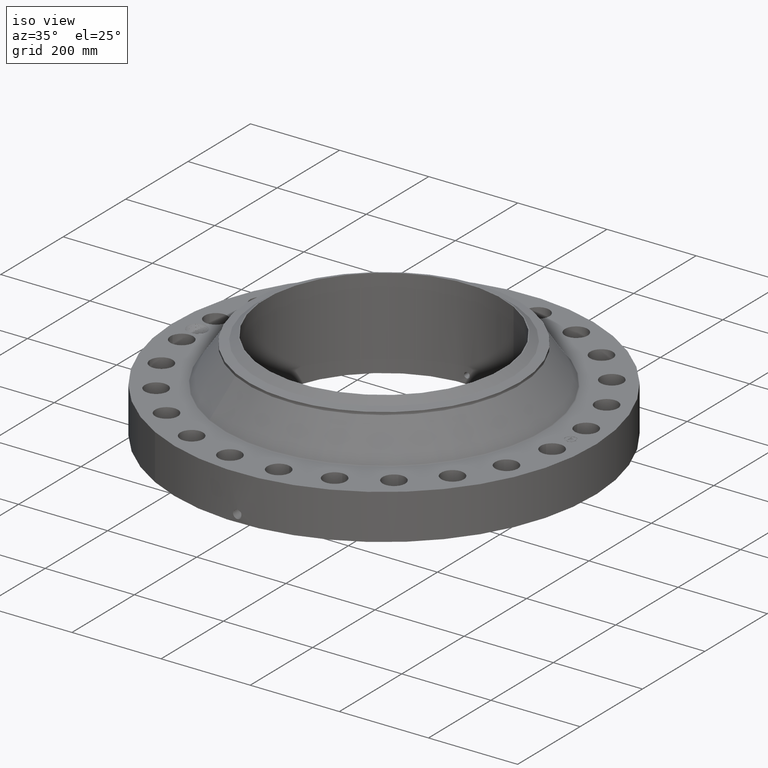
[diagram: clean part render]
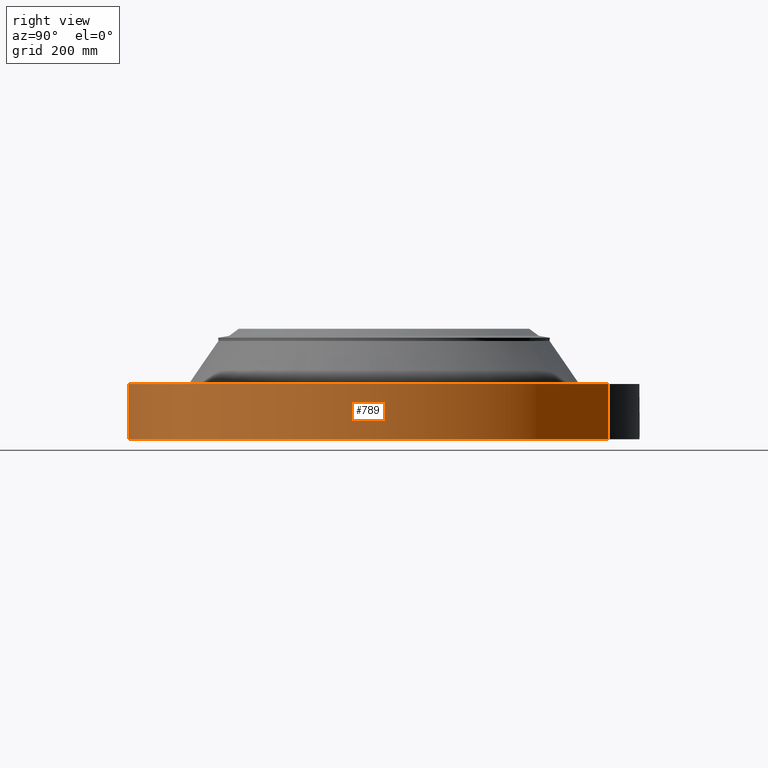
[diagram: tour spotlight — one face highlighted and labeled with its STEP entity id]
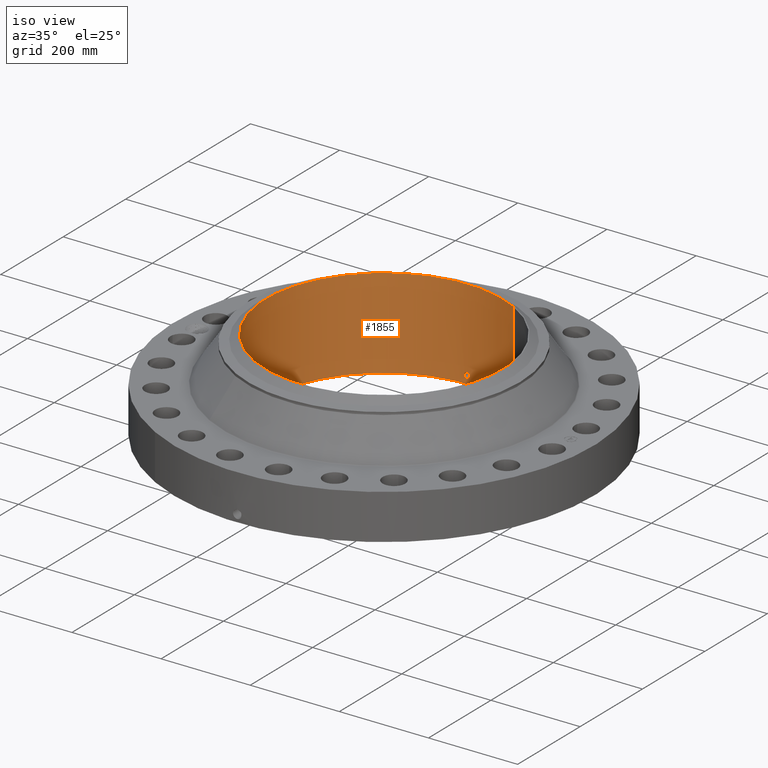
[diagram: tour spotlight — one face highlighted and labeled with its STEP entity id]
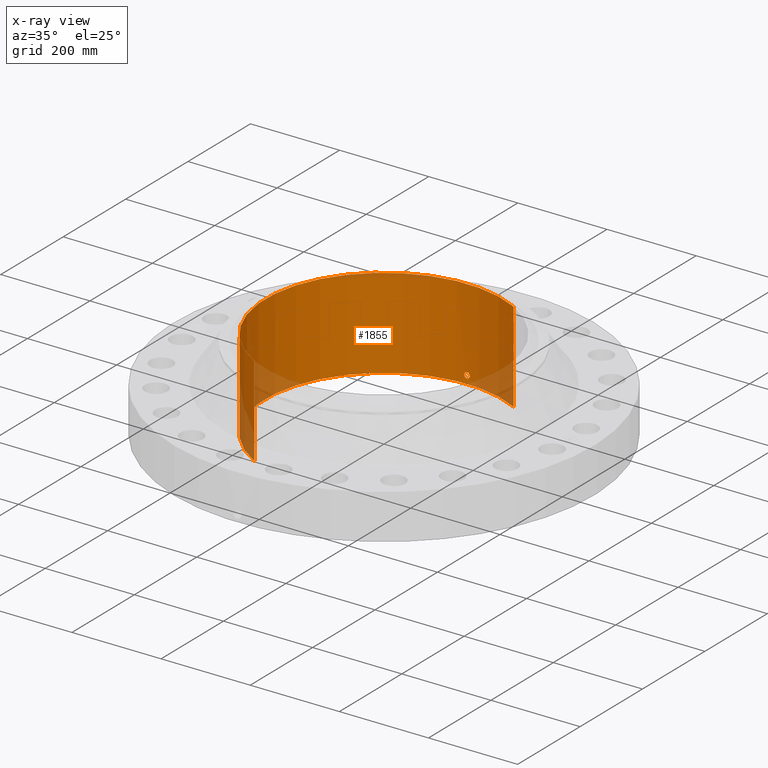
[diagram: x-ray of the same camera — body ghosted, this tour face saturated]
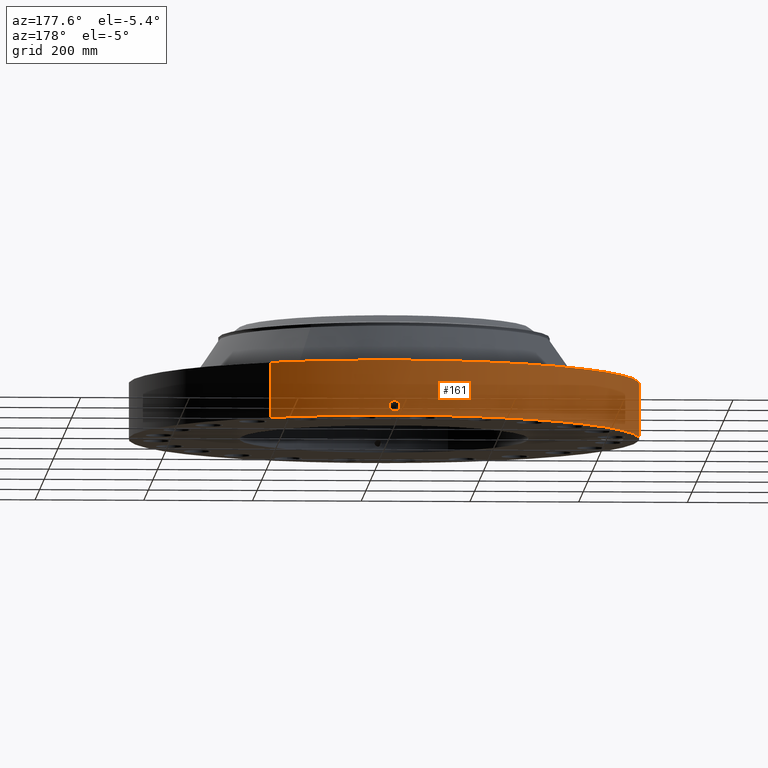
[diagram: tour spotlight — one face highlighted and labeled with its STEP entity id]
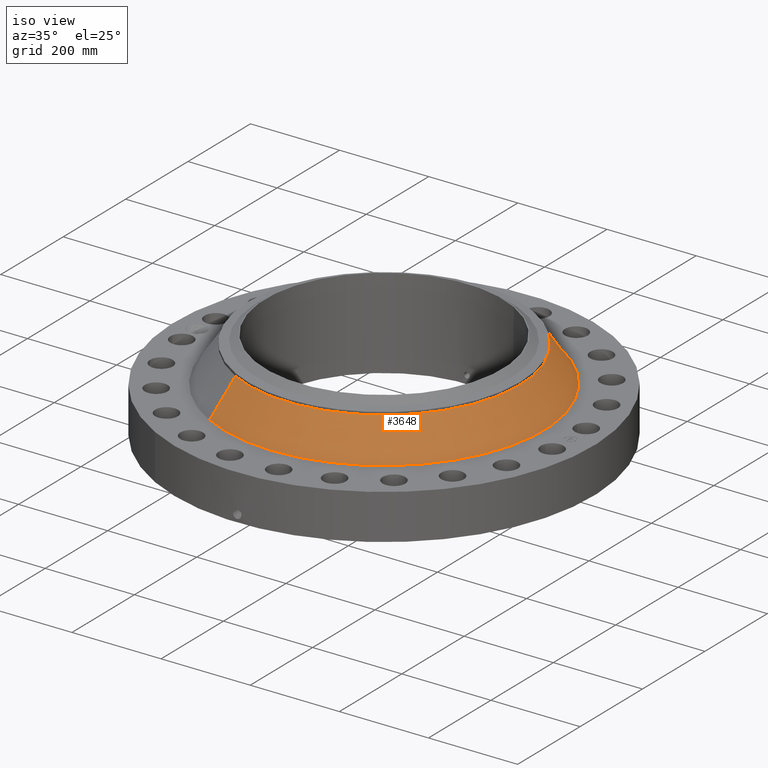
[diagram: tour spotlight — one face highlighted and labeled with its STEP entity id]
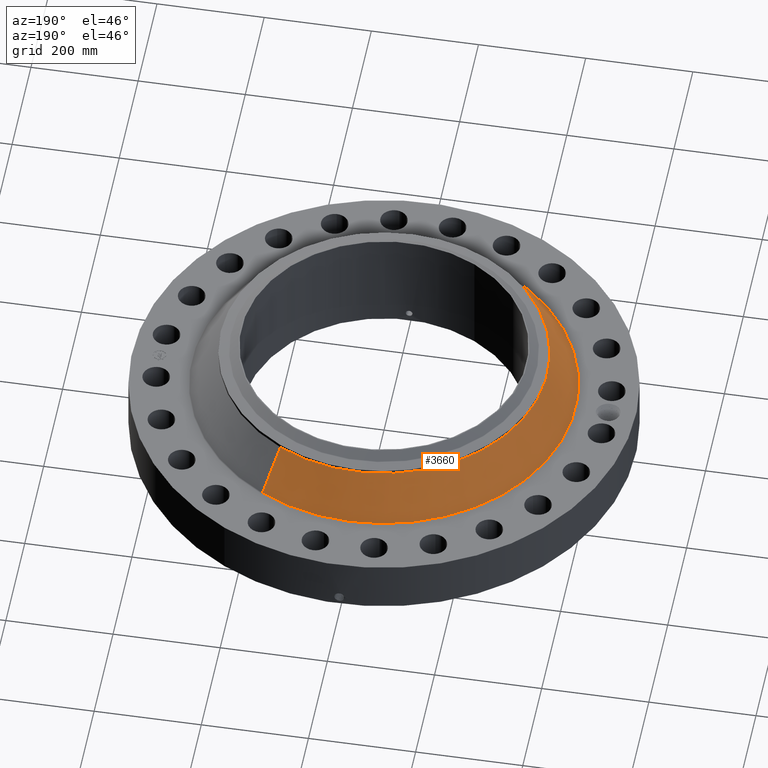
[diagram: tour spotlight — one face highlighted and labeled with its STEP entity id]
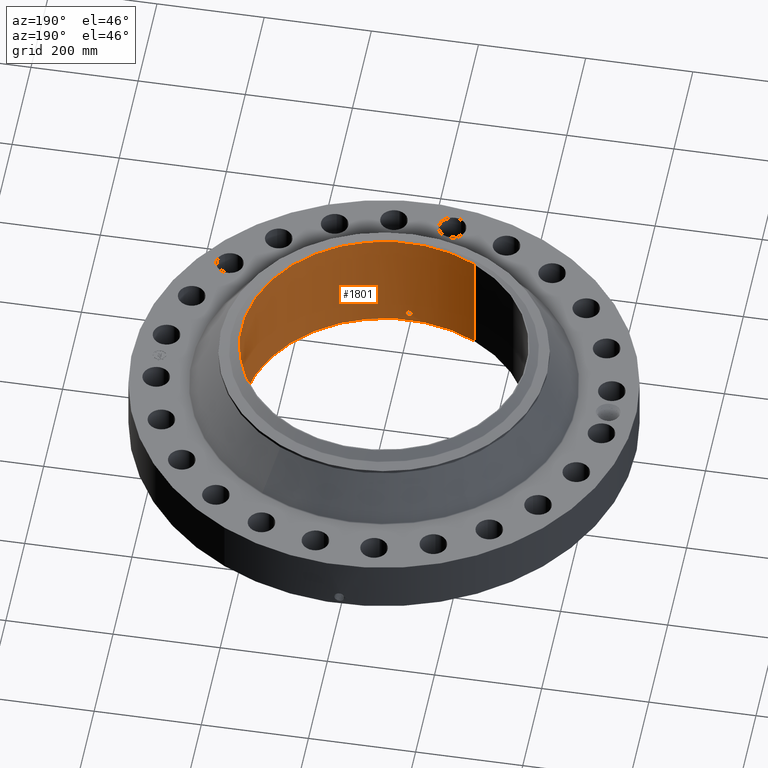
[diagram: tour spotlight — one face highlighted and labeled with its STEP entity id]
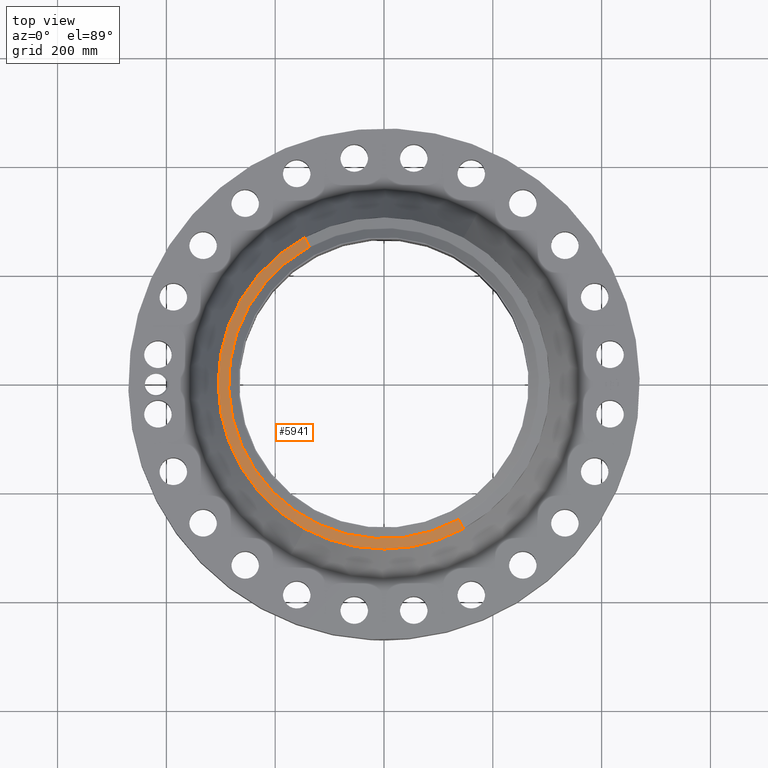
[diagram: tour spotlight — one face highlighted and labeled with its STEP entity id]
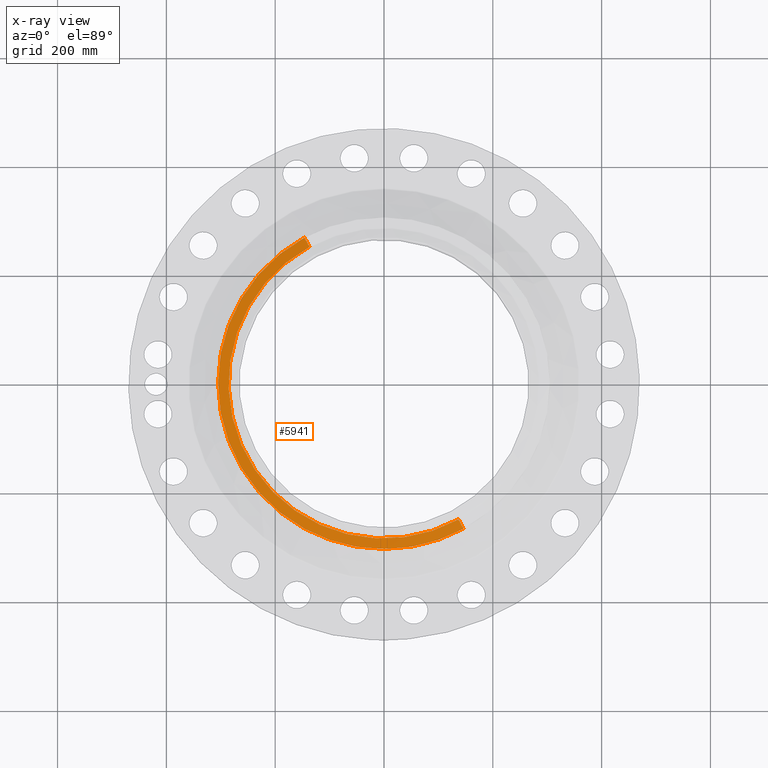
[diagram: x-ray of the same camera — body ghosted, this tour face saturated]
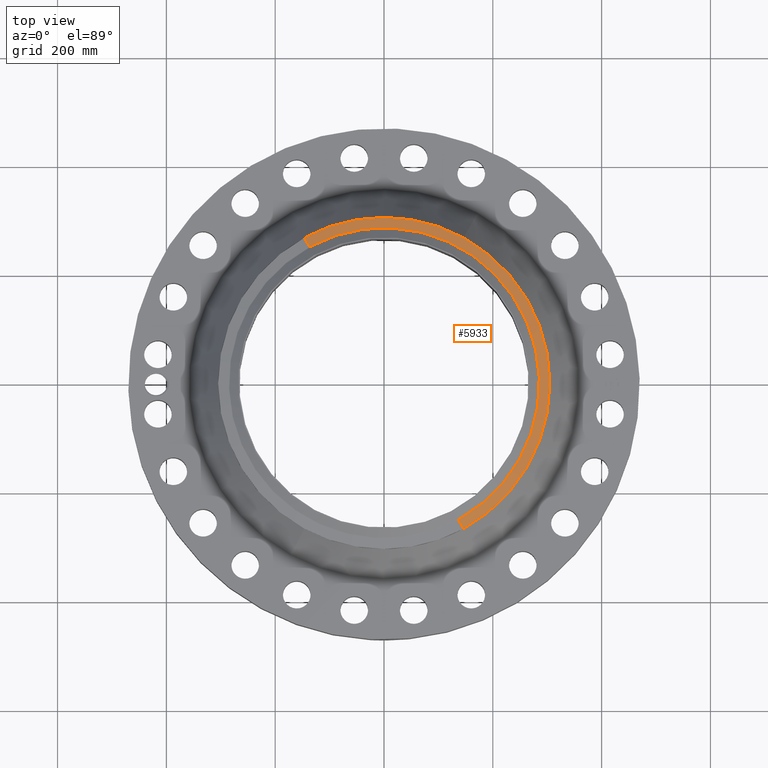
[diagram: tour spotlight — one face highlighted and labeled with its STEP entity id]
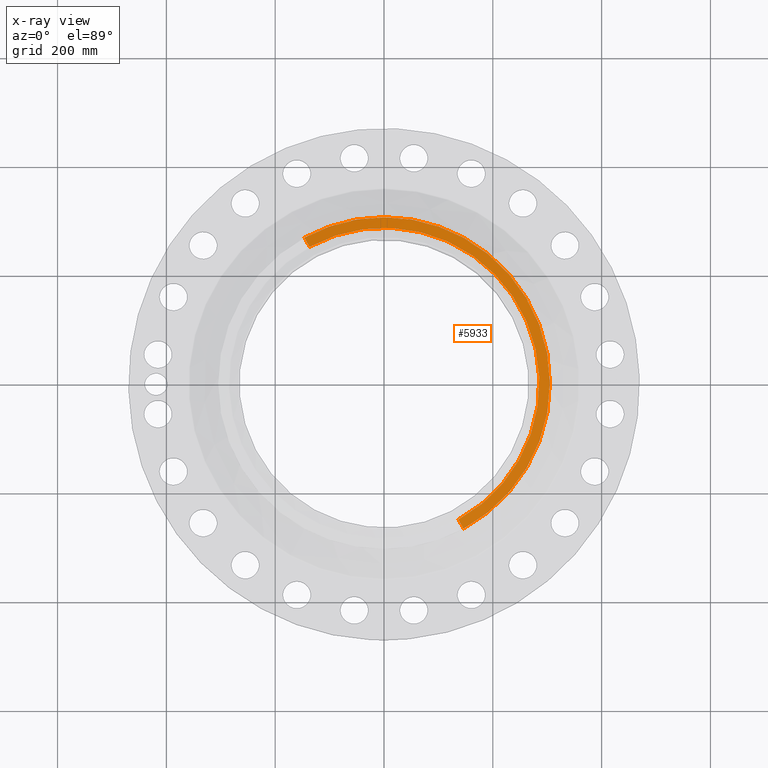
[diagram: x-ray of the same camera — body ghosted, this tour face saturated]
A machine part: a face-by-face anatomy tour. The part has 904 B-rep faces; the first image is the clean iso view, then the 8 largest visible faces are spotlighted one at a time (largest first), each with its STEP entity span.

Face 1 — right view, entity #789. In plain terms, the highlighted cylindrical surface (partial cylindrical patch) has radius 469.9 mm, axis along (0, 0, -1).
Definition (entity closure, byte-faithful):
#38=AXIS2_PLACEMENT_3D('Cylinder Axis2P3D',#35,#36,#37) ;
#169=AXIS2_PLACEMENT_3D('Circle Axis2P3D',#167,#168,$) ;
#693=AXIS2_PLACEMENT_3D('Circle Axis2P3D',#691,#692,$) ;
#35=CARTESIAN_POINT('Axis2P3D Location',(0.,0.,4.25000000002)) ;
#44=CARTESIAN_POINT('Vertex',(-8.86937246421,-16.235277395,0.250000000001)) ;
#46=CARTESIAN_POINT('Vertex',(8.86937246421,16.235277395,0.250000000001)) ;
#49=CARTESIAN_POINT('Line Origine',(-8.86937246421,-16.235277395,2.25000000001)) ;
#53=CARTESIAN_POINT('Vertex',(-8.86937246421,-16.235277395,4.25000000002)) ;
#60=CARTESIAN_POINT('Vertex',(8.86937246421,16.235277395,4.25000000002)) ;
#63=CARTESIAN_POINT('Line Origine',(8.86937246421,16.235277395,2.25000000001)) ;
#167=CARTESIAN_POINT('Axis2P3D Location',(0.,0.,0.250000000001)) ;
#691=CARTESIAN_POINT('Axis2P3D Location',(0.,0.,4.25000000002)) ;
#703=CARTESIAN_POINT('Control Point',(0.000715896612187,-18.4999999862,1.29411846169)) ;
#704=CARTESIAN_POINT('Control Point',(0.0187690338083,-18.4999992876,1.29408201303)) ;
#705=CARTESIAN_POINT('Control Point',(0.0368190531862,-18.4999719594,1.29266143021)) ;
#706=CARTESIAN_POINT('Control Point',(0.0546554423358,-18.4999192643,1.28987343585)) ;
#707=CARTESIAN_POINT('Vertex',(0.000715605657762,-18.4999999862,1.29411851083)) ;
#709=CARTESIAN_POINT('Vertex',(0.0546469351871,-18.4999195393,1.28987478304)) ;
#713=CARTESIAN_POINT('Control Point',(0.054646841952,-18.4999192897,1.28987424347)) ;
#714=CARTESIAN_POINT('Control Point',(0.0953263011124,-18.4997991268,1.2855492369)) ;
#715=CARTESIAN_POINT('Control Point',(0.135394458599,-18.4995414291,1.27383673999)) ;
#716=CARTESIAN_POINT('Control Point',(0.172335301089,-18.4991972947,1.25548810309)) ;
#717=CARTESIAN_POINT('Vertex',(0.172335301089,-18.4991972947,1.25548810309)) ;
#721=CARTESIAN_POINT('Control Point',(0.0312030034983,-18.4999736858,0.531203410469)) ;
#722=CARTESIAN_POINT('Control Point',(0.0718450460356,-18.4999051368,0.536341597851)) ;
#723=CARTESIAN_POINT('Control Point',(0.111695389267,-18.4997263163,0.546733387416)) ;
#724=CARTESIAN_POINT('Control Point',(0.14982224501,-18.4994472432,0.562224274306)) ;
#725=CARTESIAN_POINT('Control Point',(0.239726261616,-18.4985677678,0.613168772618)) ;
#726=CARTESIAN_POINT('Control Point',(0.308947751189,-18.49748029,0.690005188163)) ;
#727=CARTESIAN_POINT('Control Point',(0.34088171424,-18.4968776494,0.743751820245)) ;
#728=CARTESIAN_POINT('Control Point',(0.375548385646,-18.4961922673,0.841053911785)) ;
#729=CARTESIAN_POINT('Control Point',(0.377925518428,-18.49613818,0.942360608264)) ;
#730=CARTESIAN_POINT('Control Point',(0.373557802154,-18.4962295978,0.98289608881)) ;
#731=CARTESIAN_POINT('Control Point',(0.350960638929,-18.4966900038,1.07576397081)) ;
#732=CARTESIAN_POINT('Control Point',(0.301105416473,-18.4975866111,1.15736465344)) ;
#733=CARTESIAN_POINT('Control Point',(0.264116363887,-18.4981861301,1.19848304336)) ;
#734=CARTESIAN_POINT('Control Point',(0.220404953151,-18.4987494862,1.23161174714)) ;
#735=CARTESIAN_POINT('Control Point',(0.172335301089,-18.4991972947,1.25548810309)) ;
#736=CARTESIAN_POINT('Vertex',(0.0312030034982,-18.4999736858,0.531203410469)) ;
#740=CARTESIAN_POINT('Control Point',(0.0312030034983,-18.4999736858,0.531203410469)) ;
#741=CARTESIAN_POINT('Control Point',(0.0207974037432,-18.4999912364,0.530876622291)) ;
#742=CARTESIAN_POINT('Control Point',(0.0103835541371,-18.5000000016,0.530933889407)) ;
#743=CARTESIAN_POINT('Control Point',(-2.7287835428E-006,-18.5000000001,0.531374667806)) ;
#744=CARTESIAN_POINT('Vertex',(-2.72878354684E-006,-18.5000000001,0.531374667806)) ;
#748=CARTESIAN_POINT('Control Point',(-0.192470931564,-18.4989987552,0.587695660475)) ;
#749=CARTESIAN_POINT('Control Point',(-0.148945882499,-18.4994516071,0.562206680473)) ;
#750=CARTESIAN_POINT('Control Point',(-0.101106106884,-18.4998134468,0.543838011045)) ;
#751=CARTESIAN_POINT('Control Point',(-0.0508022021787,-18.4999999926,0.533530520618)) ;
#752=CARTESIAN_POINT('Control Point',(-2.7287835428E-006,-18.5000000001,0.531374667806)) ;
#753=CARTESIAN_POINT('Vertex',(-0.192470931564,-18.4989987552,0.587695660475)) ;
#757=CARTESIAN_POINT('Control Point',(-0.192470931564,-18.4989987552,0.587695660475)) ;
#758=CARTESIAN_POINT('Control Point',(-0.249191019794,-18.4984086168,0.620911867937)) ;
#759=CARTESIAN_POINT('Control Point',(-0.299060397388,-18.4976723445,0.665463330238)) ;
#760=CARTESIAN_POINT('Control Point',(-0.338923008855,-18.4969275001,0.719717175208)) ;
#761=CARTESIAN_POINT('Control Point',(-0.382764224126,-18.4960477714,0.818051173494)) ;
#762=CARTESIAN_POINT('Control Point',(-0.391048711258,-18.4958654701,0.923323111845)) ;
#763=CARTESIAN_POINT('Control Point',(-0.388831077384,-18.4959136413,0.963549344775)) ;
#764=CARTESIAN_POINT('Control Point',(-0.369138739474,-18.4963338364,1.06654327366)) ;
#765=CARTESIAN_POINT('Control Point',(-0.315552862232,-18.4973579272,1.15727532626)) ;
#766=CARTESIAN_POINT('Control Point',(-0.27100512944,-18.498119989,1.2048784257)) ;
#767=CARTESIAN_POINT('Control Point',(-0.190251087569,-18.4991637675,1.26077011297)) ;
#768=CARTESIAN_POINT('Control Point',(-0.0983770085627,-18.4997807413,1.28790815228)) ;
#769=CARTESIAN_POINT('Control Point',(-0.0656648821896,-18.4999278119,1.29368791324)) ;
#770=CARTESIAN_POINT('Control Point',(-0.0326810870128,-18.5000000458,1.2957565762)) ;
#771=CARTESIAN_POINT('Control Point',(2.58579355705E-005,-18.5000000001,1.29415298429)) ;
#772=CARTESIAN_POINT('Vertex',(2.58579355483E-005,-18.5000000001,1.29415298429)) ;
#776=CARTESIAN_POINT('Control Point',(0.00071560564832,-18.4999999862,1.29411851081)) ;
#777=CARTESIAN_POINT('Control Point',(0.000370756442934,-18.4999999996,1.29413607425)) ;
#778=CARTESIAN_POINT('Control Point',(2.58579404215E-005,-18.5000000001,1.29415298429)) ;
#36=DIRECTION('Axis2P3D Direction',(0.,0.,-0.0393700787402)) ;
#37=DIRECTION('Axis2P3D XDirection',(0.0188750212049,0.0345504945626,0.)) ;
#50=DIRECTION('Vector Direction',(0.,0.,-0.0393700787402)) ;
#64=DIRECTION('Vector Direction',(0.,0.,-0.0393700787402)) ;
#168=DIRECTION('Axis2P3D Direction',(0.,0.,-0.0393700787402)) ;
#692=DIRECTION('Axis2P3D Direction',(0.,0.,-0.0393700787402)) ;
#51=VECTOR('Line Direction',#50,0.0393700787402) ;
#65=VECTOR('Line Direction',#64,0.0393700787402) ;
#697=ORIENTED_EDGE('',*,*,#171,.F.) ;
#698=ORIENTED_EDGE('',*,*,#67,.T.) ;
#699=ORIENTED_EDGE('',*,*,#695,.T.) ;
#700=ORIENTED_EDGE('',*,*,#55,.F.) ;
#781=ORIENTED_EDGE('',*,*,#711,.T.) ;
#782=ORIENTED_EDGE('',*,*,#719,.T.) ;
#783=ORIENTED_EDGE('',*,*,#738,.F.) ;
#784=ORIENTED_EDGE('',*,*,#746,.T.) ;
#785=ORIENTED_EDGE('',*,*,#755,.F.) ;
#786=ORIENTED_EDGE('',*,*,#774,.T.) ;
#787=ORIENTED_EDGE('',*,*,#779,.F.) ;
#788=FACE_BOUND('',#780,.T.) ;
#789=ADVANCED_FACE('PartBody',(#701,#788),#39,.T.) ;
#702=B_SPLINE_CURVE_WITH_KNOTS('',3,(#703,#704,#705,#706),.UNSPECIFIED.,.F.,.U.,(4,4),(34.6168172581,36.6196409786),.UNSPECIFIED.) ;
#712=B_SPLINE_CURVE_WITH_KNOTS('',3,(#713,#714,#715,#716),.UNSPECIFIED.,.F.,.U.,(4,4),(0.,4.59668714715),.UNSPECIFIED.) ;
#720=B_SPLINE_CURVE_WITH_KNOTS('',5,(#721,#722,#723,#724,#725,#726,#727,#728,#729,#730,#731,#732,#733,#734,#735),.UNSPECIFIED.,.F.,.U.,(6,3,3,3,6),(0.,7.11929031029,18.0049270622,25.3403511784,35.3094956411),.UNSPECIFIED.) ;
#739=B_SPLINE_CURVE_WITH_KNOTS('',3,(#740,#741,#742,#743),.UNSPECIFIED.,.F.,.U.,(4,4),(0.,1.08548804539),.UNSPECIFIED.) ;
#747=B_SPLINE_CURVE_WITH_KNOTS('',4,(#748,#749,#750,#751,#752),.UNSPECIFIED.,.F.,.U.,(5,5),(0.,7.07885216375),.UNSPECIFIED.) ;
#756=B_SPLINE_CURVE_WITH_KNOTS('',5,(#757,#758,#759,#760,#761,#762,#763,#764,#765,#766,#767,#768,#769,#770,#771),.UNSPECIFIED.,.F.,.U.,(6,3,3,3,6),(0.,11.5310929591,18.6347139067,30.1344178144,36.2480248313),.UNSPECIFIED.) ;
#775=B_SPLINE_CURVE_WITH_KNOTS('',2,(#776,#777,#778),.UNSPECIFIED.,.F.,.U.,(3,3),(1.01633898163,1.04212645876),.UNSPECIFIED.) ;
#170=CIRCLE('generated circle',#169,18.5000000001) ;
#694=CIRCLE('generated circle',#693,18.5000000001) ;
#39=CYLINDRICAL_SURFACE('generated cylinder',#38,18.5000000001) ;
#55=EDGE_CURVE('',#45,#54,#52,.F.) ;
#67=EDGE_CURVE('',#47,#61,#66,.F.) ;
#171=EDGE_CURVE('',#47,#45,#170,.T.) ;
#695=EDGE_CURVE('',#61,#54,#694,.T.) ;
#711=EDGE_CURVE('',#708,#710,#702,.T.) ;
#719=EDGE_CURVE('',#710,#718,#712,.T.) ;
#738=EDGE_CURVE('',#737,#718,#720,.T.) ;
#746=EDGE_CURVE('',#737,#745,#739,.T.) ;
#755=EDGE_CURVE('',#754,#745,#747,.T.) ;
#774=EDGE_CURVE('',#754,#773,#756,.T.) ;
#779=EDGE_CURVE('',#708,#773,#775,.T.) ;
#696=EDGE_LOOP('',(#697,#698,#699,#700)) ;
#780=EDGE_LOOP('',(#781,#782,#783,#784,#785,#786,#787)) ;
#701=FACE_OUTER_BOUND('',#696,.T.) ;
#52=LINE('Line',#49,#51) ;
#66=LINE('Line',#63,#65) ;
#45=VERTEX_POINT('',#44) ;
#47=VERTEX_POINT('',#46) ;
#54=VERTEX_POINT('',#53) ;
#61=VERTEX_POINT('',#60) ;
#708=VERTEX_POINT('',#707) ;
#710=VERTEX_POINT('',#709) ;
#718=VERTEX_POINT('',#717) ;
#737=VERTEX_POINT('',#736) ;
#745=VERTEX_POINT('',#744) ;
#754=VERTEX_POINT('',#753) ;
#773=VERTEX_POINT('',#772) ;

Face 2 — iso view, entity #1855. An x-ray twin of the same camera follows (body ghosted, this face saturated) — the face is partly hidden behind the body. In plain terms, the highlighted cylindrical surface (partial cylindrical patch) has radius 265.913 mm, axis along (0, 0, -1).
Definition (entity closure, byte-faithful):
#269=AXIS2_PLACEMENT_3D('Circle Axis2P3D',#267,#268,$) ;
#1732=AXIS2_PLACEMENT_3D('Cylinder Axis2P3D',#1729,#1730,#1731) ;
#1804=AXIS2_PLACEMENT_3D('Circle Axis2P3D',#1802,#1803,$) ;
#262=CARTESIAN_POINT('Vertex',(5.01910596367,9.18741184047,0.250000000001)) ;
#264=CARTESIAN_POINT('Vertex',(-5.01910596367,-9.18741184047,0.250000000001)) ;
#267=CARTESIAN_POINT('Axis2P3D Location',(0.,0.,0.250000000001)) ;
#1729=CARTESIAN_POINT('Axis2P3D Location',(0.,0.,4.25000000002)) ;
#1738=CARTESIAN_POINT('Vertex',(5.01910596367,9.18741184047,8.25000000003)) ;
#1740=CARTESIAN_POINT('Vertex',(-5.01910596367,-9.18741184047,8.25000000003)) ;
#1743=CARTESIAN_POINT('Line Origine',(5.01910596367,9.18741184047,4.25000000002)) ;
#1748=CARTESIAN_POINT('Line Origine',(-5.01910596367,-9.18741184047,4.25000000002)) ;
#1802=CARTESIAN_POINT('Axis2P3D Location',(0.,0.,8.25000000003)) ;
#1814=CARTESIAN_POINT('Control Point',(0.219395640473,10.4667008438,1.05985638466)) ;
#1815=CARTESIAN_POINT('Control Point',(0.194442805379,10.4672238876,1.10553224292)) ;
#1816=CARTESIAN_POINT('Control Point',(0.157604308493,10.4679216776,1.14471284755)) ;
#1817=CARTESIAN_POINT('Control Point',(0.111105525476,10.4686003343,1.17324413071)) ;
#1818=CARTESIAN_POINT('Control Point',(0.0336698364501,10.4691402817,1.19588309491)) ;
#1819=CARTESIAN_POINT('Control Point',(-0.04467523379,10.4689536645,1.18805580271)) ;
#1820=CARTESIAN_POINT('Control Point',(-0.0703061663886,10.4688087947,1.18204244113)) ;
#1821=CARTESIAN_POINT('Control Point',(-0.143963758017,10.4681686345,1.15420772159)) ;
#1822=CARTESIAN_POINT('Control Point',(-0.203252302546,10.4671237817,1.09948821278)) ;
#1823=CARTESIAN_POINT('Control Point',(-0.232215867523,10.466438566,1.05324554275)) ;
#1824=CARTESIAN_POINT('Control Point',(-0.255841566813,10.4658753962,0.97510017689)) ;
#1825=CARTESIAN_POINT('Control Point',(-0.248280906445,10.4660554737,0.895739021835)) ;
#1826=CARTESIAN_POINT('Control Point',(-0.242047174431,10.4662060981,0.869179533884)) ;
#1827=CARTESIAN_POINT('Control Point',(-0.232314322632,10.4664300515,0.843791104425)) ;
#1828=CARTESIAN_POINT('Control Point',(-0.219395640473,10.4667008438,0.820143615352)) ;
#1829=CARTESIAN_POINT('Vertex',(0.219395640473,10.4667008438,1.05985638466)) ;
#1831=CARTESIAN_POINT('Vertex',(-0.219395640473,10.4667008438,0.820143615352)) ;
#1835=CARTESIAN_POINT('Control Point',(-0.219395640473,10.4667008438,0.820143615352)) ;
#1836=CARTESIAN_POINT('Control Point',(-0.194442805352,10.4672238876,0.77446775704)) ;
#1837=CARTESIAN_POINT('Control Point',(-0.157604308411,10.4679216776,0.735287152367)) ;
#1838=CARTESIAN_POINT('Control Point',(-0.111105525591,10.4686003343,0.70675586933)) ;
#1839=CARTESIAN_POINT('Control Point',(-0.0336698365094,10.4691402817,0.684116905096)) ;
#1840=CARTESIAN_POINT('Control Point',(0.0446752337872,10.4689536645,0.691944197297)) ;
#1841=CARTESIAN_POINT('Control Point',(0.0703061663893,10.4688087947,0.697957558879)) ;
#1842=CARTESIAN_POINT('Control Point',(0.14396375787,10.4681686345,0.725792278362)) ;
#1843=CARTESIAN_POINT('Control Point',(0.203252302309,10.4671237817,0.780511787005)) ;
#1844=CARTESIAN_POINT('Control Point',(0.232215867616,10.466438566,0.826754457563)) ;
#1845=CARTESIAN_POINT('Control Point',(0.255841566784,10.4658753962,0.904899823227)) ;
#1846=CARTESIAN_POINT('Control Point',(0.248280906454,10.4660554737,0.98426097808)) ;
#1847=CARTESIAN_POINT('Control Point',(0.242047174397,10.4662060981,1.01082046621)) ;
#1848=CARTESIAN_POINT('Control Point',(0.232314322611,10.4664300515,1.03620889562)) ;
#1849=CARTESIAN_POINT('Control Point',(0.219395640473,10.4667008438,1.05985638466)) ;
#268=DIRECTION('Axis2P3D Direction',(0.,0.,-0.0393700787402)) ;
#1730=DIRECTION('Axis2P3D Direction',(0.,0.,-0.0393700787402)) ;
#1731=DIRECTION('Axis2P3D XDirection',(-0.0188750212049,-0.0345504945626,0.)) ;
#1744=DIRECTION('Vector Direction',(0.,0.,-0.0393700787402)) ;
#1749=DIRECTION('Vector Direction',(0.,0.,-0.0393700787402)) ;
#1803=DIRECTION('Axis2P3D Direction',(0.,0.,-0.0393700787402)) ;
#1745=VECTOR('Line Direction',#1744,0.0393700787402) ;
#1750=VECTOR('Line Direction',#1749,0.0393700787402) ;
#1808=ORIENTED_EDGE('',*,*,#1806,.F.) ;
#1809=ORIENTED_EDGE('',*,*,#1752,.T.) ;
#1810=ORIENTED_EDGE('',*,*,#271,.T.) ;
#1811=ORIENTED_EDGE('',*,*,#1747,.F.) ;
#1852=ORIENTED_EDGE('',*,*,#1833,.F.) ;
#1853=ORIENTED_EDGE('',*,*,#1850,.F.) ;
#1854=FACE_BOUND('',#1851,.T.) ;
#1855=ADVANCED_FACE('PartBody',(#1812,#1854),#1733,.F.) ;
#1813=B_SPLINE_CURVE_WITH_KNOTS('',5,(#1814,#1815,#1816,#1817,#1818,#1819,#1820,#1821,#1822,#1823,#1824,#1825,#1826,#1827,#1828),.UNSPECIFIED.,.F.,.U.,(6,3,3,3,6),(0.,9.34844503836,14.0229718945,23.3730160046,28.2129305744),.UNSPECIFIED.) ;
#1834=B_SPLINE_CURVE_WITH_KNOTS('',5,(#1835,#1836,#1837,#1838,#1839,#1840,#1841,#1842,#1843,#1844,#1845,#1846,#1847,#1848,#1849),.UNSPECIFIED.,.F.,.U.,(6,3,3,3,6),(0.,9.34844504866,14.0229719047,23.3730159868,28.2129305484),.UNSPECIFIED.) ;
#270=CIRCLE('generated circle',#269,10.469) ;
#1805=CIRCLE('generated circle',#1804,10.469) ;
#1733=CYLINDRICAL_SURFACE('generated cylinder',#1732,10.469) ;
#271=EDGE_CURVE('',#265,#263,#270,.T.) ;
#1747=EDGE_CURVE('',#1739,#263,#1746,.T.) ;
#1752=EDGE_CURVE('',#1741,#265,#1751,.T.) ;
#1806=EDGE_CURVE('',#1741,#1739,#1805,.T.) ;
#1833=EDGE_CURVE('',#1830,#1832,#1813,.T.) ;
#1850=EDGE_CURVE('',#1832,#1830,#1834,.T.) ;
#1807=EDGE_LOOP('',(#1808,#1809,#1810,#1811)) ;
#1851=EDGE_LOOP('',(#1852,#1853)) ;
#1812=FACE_OUTER_BOUND('',#1807,.T.) ;
#1746=LINE('Line',#1743,#1745) ;
#1751=LINE('Line',#1748,#1750) ;
#263=VERTEX_POINT('',#262) ;
#265=VERTEX_POINT('',#264) ;
#1739=VERTEX_POINT('',#1738) ;
#1741=VERTEX_POINT('',#1740) ;
#1830=VERTEX_POINT('',#1829) ;
#1832=VERTEX_POINT('',#1831) ;

Face 3 — auxiliary view, entity #161. In plain terms, the highlighted cylindrical surface (partial cylindrical patch) has radius 469.9 mm, axis along (0, 0, -1).
Definition (entity closure, byte-faithful):
#38=AXIS2_PLACEMENT_3D('Cylinder Axis2P3D',#35,#36,#37) ;
#42=AXIS2_PLACEMENT_3D('Circle Axis2P3D',#40,#41,$) ;
#58=AXIS2_PLACEMENT_3D('Circle Axis2P3D',#56,#57,$) ;
#35=CARTESIAN_POINT('Axis2P3D Location',(0.,0.,4.25000000002)) ;
#40=CARTESIAN_POINT('Axis2P3D Location',(0.,0.,0.250000000001)) ;
#44=CARTESIAN_POINT('Vertex',(-8.86937246421,-16.235277395,0.250000000001)) ;
#46=CARTESIAN_POINT('Vertex',(8.86937246421,16.235277395,0.250000000001)) ;
#49=CARTESIAN_POINT('Line Origine',(-8.86937246421,-16.235277395,2.25000000001)) ;
#53=CARTESIAN_POINT('Vertex',(-8.86937246421,-16.235277395,4.25000000002)) ;
#56=CARTESIAN_POINT('Axis2P3D Location',(0.,0.,4.25000000002)) ;
#60=CARTESIAN_POINT('Vertex',(8.86937246421,16.235277395,4.25000000002)) ;
#63=CARTESIAN_POINT('Line Origine',(8.86937246421,16.235277395,2.25000000001)) ;
#75=CARTESIAN_POINT('Control Point',(-0.000715896612715,18.4999999862,1.29411846169)) ;
#76=CARTESIAN_POINT('Control Point',(-0.0187690338112,18.4999992876,1.29408201303)) ;
#77=CARTESIAN_POINT('Control Point',(-0.0368190531836,18.4999719594,1.29266143022)) ;
#78=CARTESIAN_POINT('Control Point',(-0.054655442336,18.4999192643,1.28987343585)) ;
#79=CARTESIAN_POINT('Vertex',(-0.000715605657758,18.4999999862,1.29411851083)) ;
#81=CARTESIAN_POINT('Vertex',(-0.0546469351871,18.4999195393,1.28987478304)) ;
#85=CARTESIAN_POINT('Control Point',(-0.054646841952,18.4999192897,1.28987424347)) ;
#86=CARTESIAN_POINT('Control Point',(-0.0953263011116,18.4997991268,1.2855492369)) ;
#87=CARTESIAN_POINT('Control Point',(-0.1353944586,18.4995414291,1.27383673999)) ;
#88=CARTESIAN_POINT('Control Point',(-0.172335301089,18.4991972947,1.25548810309)) ;
#89=CARTESIAN_POINT('Vertex',(-0.172335301089,18.4991972947,1.25548810309)) ;
#93=CARTESIAN_POINT('Control Point',(-0.0312030034983,18.4999736858,0.531203410469)) ;
#94=CARTESIAN_POINT('Control Point',(-0.0718450460349,18.4999051368,0.536341597851)) ;
#95=CARTESIAN_POINT('Control Point',(-0.111695389266,18.4997263163,0.546733387414)) ;
#96=CARTESIAN_POINT('Control Point',(-0.14982224501,18.4994472432,0.562224274306)) ;
#97=CARTESIAN_POINT('Control Point',(-0.239726261622,18.4985677678,0.613168772621)) ;
#98=CARTESIAN_POINT('Control Point',(-0.308947751198,18.49748029,0.690005188173)) ;
#99=CARTESIAN_POINT('Control Point',(-0.340881714235,18.4968776494,0.74375182023)) ;
#100=CARTESIAN_POINT('Control Point',(-0.375548385658,18.4961922673,0.841053911813)) ;
#101=CARTESIAN_POINT('Control Point',(-0.37792551843,18.49613818,0.942360608338)) ;
#102=CARTESIAN_POINT('Control Point',(-0.373557802171,18.4962295978,0.982896088736)) ;
#103=CARTESIAN_POINT('Control Point',(-0.350960638959,18.4966900038,1.07576397074)) ;
#104=CARTESIAN_POINT('Control Point',(-0.301105416515,18.4975866111,1.15736465337)) ;
#105=CARTESIAN_POINT('Control Point',(-0.264116363823,18.4981861301,1.19848304341)) ;
#106=CARTESIAN_POINT('Control Point',(-0.220404953116,18.4987494862,1.23161174716)) ;
#107=CARTESIAN_POINT('Control Point',(-0.172335301089,18.4991972947,1.25548810309)) ;
#108=CARTESIAN_POINT('Vertex',(-0.0312030034982,18.4999736858,0.531203410469)) ;
#112=CARTESIAN_POINT('Control Point',(-0.0312030034983,18.4999736858,0.531203410469)) ;
#113=CARTESIAN_POINT('Control Point',(-0.0207974037432,18.4999912364,0.530876622291)) ;
#114=CARTESIAN_POINT('Control Point',(-0.0103835541371,18.5000000016,0.530933889407)) ;
#115=CARTESIAN_POINT('Control Point',(2.72878354054E-006,18.5000000001,0.531374667806)) ;
#116=CARTESIAN_POINT('Vertex',(2.72878354453E-006,18.5000000001,0.531374667806)) ;
#120=CARTESIAN_POINT('Control Point',(0.192470931564,18.4989987552,0.587695660475)) ;
#121=CARTESIAN_POINT('Control Point',(0.148945882516,18.4994516071,0.562206680483)) ;
#122=CARTESIAN_POINT('Control Point',(0.101106106863,18.4998134468,0.543838011041)) ;
#123=CARTESIAN_POINT('Control Point',(0.0508022021583,18.4999999926,0.533530520617)) ;
#124=CARTESIAN_POINT('Control Point',(2.72878350769E-006,18.5000000001,0.531374667806)) ;
#125=CARTESIAN_POINT('Vertex',(0.192470931564,18.4989987552,0.587695660475)) ;
#129=CARTESIAN_POINT('Control Point',(0.192470931564,18.4989987552,0.587695660475)) ;
#130=CARTESIAN_POINT('Control Point',(0.249191019602,18.4984086168,0.620911867824)) ;
#131=CARTESIAN_POINT('Control Point',(0.299060397049,18.4976723445,0.665463329935)) ;
#132=CARTESIAN_POINT('Control Point',(0.3389230087,18.4969275001,0.719717175065)) ;
#133=CARTESIAN_POINT('Control Point',(0.382764223889,18.4960477714,0.818051172916)) ;
#134=CARTESIAN_POINT('Control Point',(0.391048711231,18.4958654701,0.923323110838)) ;
#135=CARTESIAN_POINT('Control Point',(0.388831077383,18.4959136413,0.963549344505)) ;
#136=CARTESIAN_POINT('Control Point',(0.369138739612,18.4963338364,1.06654327327)) ;
#137=CARTESIAN_POINT('Control Point',(0.315552862574,18.4973579272,1.15727532584)) ;
#138=CARTESIAN_POINT('Control Point',(0.271005129996,18.498119989,1.20487842521)) ;
#139=CARTESIAN_POINT('Control Point',(0.190251088072,18.4991637675,1.26077011274)) ;
#140=CARTESIAN_POINT('Control Point',(0.0983770089225,18.4997807413,1.28790815221)) ;
#141=CARTESIAN_POINT('Control Point',(0.0656648824471,18.4999278119,1.29368791322)) ;
#142=CARTESIAN_POINT('Control Point',(0.0326810871404,18.5000000458,1.2957565762)) ;
#143=CARTESIAN_POINT('Control Point',(-2.58579355563E-005,18.5000000001,1.29415298429)) ;
#144=CARTESIAN_POINT('Vertex',(-2.58579355506E-005,18.5000000001,1.29415298429)) ;
#148=CARTESIAN_POINT('Control Point',(-0.000715605648266,18.4999999862,1.29411851081)) ;
#149=CARTESIAN_POINT('Control Point',(-0.000370756442903,18.4999999996,1.29413607425)) ;
#150=CARTESIAN_POINT('Control Point',(-2.5857940414E-005,18.5000000001,1.29415298429)) ;
#36=DIRECTION('Axis2P3D Direction',(0.,0.,-0.0393700787402)) ;
#37=DIRECTION('Axis2P3D XDirection',(0.0188750212049,0.0345504945626,0.)) ;
#41=DIRECTION('Axis2P3D Direction',(0.,0.,-0.0393700787402)) ;
#50=DIRECTION('Vector Direction',(0.,0.,-0.0393700787402)) ;
#57=DIRECTION('Axis2P3D Direction',(0.,0.,-0.0393700787402)) ;
#64=DIRECTION('Vector Direction',(0.,0.,-0.0393700787402)) ;
#51=VECTOR('Line Direction',#50,0.0393700787402) ;
#65=VECTOR('Line Direction',#64,0.0393700787402) ;
#69=ORIENTED_EDGE('',*,*,#48,.F.) ;
#70=ORIENTED_EDGE('',*,*,#55,.T.) ;
#71=ORIENTED_EDGE('',*,*,#62,.T.) ;
#72=ORIENTED_EDGE('',*,*,#67,.F.) ;
#153=ORIENTED_EDGE('',*,*,#83,.T.) ;
#154=ORIENTED_EDGE('',*,*,#91,.T.) ;
#155=ORIENTED_EDGE('',*,*,#110,.F.) ;
#156=ORIENTED_EDGE('',*,*,#118,.T.) ;
#157=ORIENTED_EDGE('',*,*,#127,.F.) ;
#158=ORIENTED_EDGE('',*,*,#146,.T.) ;
#159=ORIENTED_EDGE('',*,*,#151,.F.) ;
#160=FACE_BOUND('',#152,.T.) ;
#161=ADVANCED_FACE('PartBody',(#73,#160),#39,.T.) ;
#74=B_SPLINE_CURVE_WITH_KNOTS('',3,(#75,#76,#77,#78),.UNSPECIFIED.,.F.,.U.,(4,4),(34.6168172613,36.6196409816),.UNSPECIFIED.) ;
#84=B_SPLINE_CURVE_WITH_KNOTS('',3,(#85,#86,#87,#88),.UNSPECIFIED.,.F.,.U.,(4,4),(0.,4.59668714706),.UNSPECIFIED.) ;
#92=B_SPLINE_CURVE_WITH_KNOTS('',5,(#93,#94,#95,#96,#97,#98,#99,#100,#101,#102,#103,#104,#105,#106,#107),.UNSPECIFIED.,.F.,.U.,(6,3,3,3,6),(0.,7.11929031017,18.0049270634,25.3403511863,35.3094956417),.UNSPECIFIED.) ;
#111=B_SPLINE_CURVE_WITH_KNOTS('',3,(#112,#113,#114,#115),.UNSPECIFIED.,.F.,.U.,(4,4),(0.,1.08548804539),.UNSPECIFIED.) ;
#119=B_SPLINE_CURVE_WITH_KNOTS('',4,(#120,#121,#122,#123,#124),.UNSPECIFIED.,.F.,.U.,(5,5),(0.,7.07885216093),.UNSPECIFIED.) ;
#128=B_SPLINE_CURVE_WITH_KNOTS('',5,(#129,#130,#131,#132,#133,#134,#135,#136,#137,#138,#139,#140,#141,#142,#143),.UNSPECIFIED.,.F.,.U.,(6,3,3,3,6),(0.,11.53109292,18.6347138349,30.1344177512,36.248024792),.UNSPECIFIED.) ;
#147=B_SPLINE_CURVE_WITH_KNOTS('',2,(#148,#149,#150),.UNSPECIFIED.,.F.,.U.,(3,3),(1.01633898163,1.04212645876),.UNSPECIFIED.) ;
#43=CIRCLE('generated circle',#42,18.5000000001) ;
#59=CIRCLE('generated circle',#58,18.5000000001) ;
#39=CYLINDRICAL_SURFACE('generated cylinder',#38,18.5000000001) ;
#48=EDGE_CURVE('',#45,#47,#43,.T.) ;
#55=EDGE_CURVE('',#45,#54,#52,.F.) ;
#62=EDGE_CURVE('',#54,#61,#59,.T.) ;
#67=EDGE_CURVE('',#47,#61,#66,.F.) ;
#83=EDGE_CURVE('',#80,#82,#74,.T.) ;
#91=EDGE_CURVE('',#82,#90,#84,.T.) ;
#110=EDGE_CURVE('',#109,#90,#92,.T.) ;
#118=EDGE_CURVE('',#109,#117,#111,.T.) ;
#127=EDGE_CURVE('',#126,#117,#119,.T.) ;
#146=EDGE_CURVE('',#126,#145,#128,.T.) ;
#151=EDGE_CURVE('',#80,#145,#147,.T.) ;
#68=EDGE_LOOP('',(#69,#70,#71,#72)) ;
#152=EDGE_LOOP('',(#153,#154,#155,#156,#157,#158,#159)) ;
#73=FACE_OUTER_BOUND('',#68,.T.) ;
#52=LINE('Line',#49,#51) ;
#66=LINE('Line',#63,#65) ;
#45=VERTEX_POINT('',#44) ;
#47=VERTEX_POINT('',#46) ;
#54=VERTEX_POINT('',#53) ;
#61=VERTEX_POINT('',#60) ;
#80=VERTEX_POINT('',#79) ;
#82=VERTEX_POINT('',#81) ;
#90=VERTEX_POINT('',#89) ;
#109=VERTEX_POINT('',#108) ;
#117=VERTEX_POINT('',#116) ;
#126=VERTEX_POINT('',#125) ;
#145=VERTEX_POINT('',#144) ;

Face 4 — iso view, entity #3648. In plain terms, the highlighted conical surface has half-angle 34.326 deg.
Definition (entity closure, byte-faithful):
#2923=AXIS2_PLACEMENT_3D('Circle Axis2P3D',#2921,#2922,$) ;
#3621=AXIS2_PLACEMENT_3D('Cone Axis2P3D',#3618,#3619,#3620) ;
#3632=AXIS2_PLACEMENT_3D('Circle Axis2P3D',#3630,#3631,$) ;
#2918=CARTESIAN_POINT('Vertex',(6.75475435717,12.364494914,4.30233273859)) ;
#2921=CARTESIAN_POINT('Axis2P3D Location',(0.,0.,4.30233273859)) ;
#2925=CARTESIAN_POINT('Vertex',(-6.75475435717,-12.364494914,4.30233273859)) ;
#3618=CARTESIAN_POINT('Axis2P3D Location',(0.,0.,7.36215574839)) ;
#3623=CARTESIAN_POINT('Line Origine',(6.25393041022,11.4477428284,5.83224424349)) ;
#3627=CARTESIAN_POINT('Vertex',(5.75310646327,10.5309907427,7.36215574839)) ;
#3630=CARTESIAN_POINT('Axis2P3D Location',(0.,0.,7.36215574839)) ;
#3634=CARTESIAN_POINT('Vertex',(-5.75310646327,-10.5309907427,7.36215574839)) ;
#3637=CARTESIAN_POINT('Line Origine',(-6.25393041022,-11.4477428284,5.83224424349)) ;
#2922=DIRECTION('Axis2P3D Direction',(0.,0.,-0.0393700787402)) ;
#3619=DIRECTION('Axis2P3D Direction',(0.,0.,-0.0393700787402)) ;
#3620=DIRECTION('Axis2P3D XDirection',(-0.0188750212049,-0.0345504945626,0.)) ;
#3624=DIRECTION('Vector Direction',(0.0106435082858,0.0194828112331,-0.0325136724753)) ;
#3631=DIRECTION('Axis2P3D Direction',(0.,0.,-0.0393700787402)) ;
#3638=DIRECTION('Vector Direction',(-0.0106435082858,-0.0194828112331,-0.0325136724753)) ;
#3625=VECTOR('Line Direction',#3624,0.0393700787402) ;
#3639=VECTOR('Line Direction',#3638,0.0393700787402) ;
#3643=ORIENTED_EDGE('',*,*,#2927,.F.) ;
#3644=ORIENTED_EDGE('',*,*,#3629,.T.) ;
#3645=ORIENTED_EDGE('',*,*,#3636,.T.) ;
#3646=ORIENTED_EDGE('',*,*,#3641,.F.) ;
#3648=ADVANCED_FACE('PartBody',(#3647),#3622,.T.) ;
#2924=CIRCLE('generated circle',#2923,14.0892668689) ;
#3633=CIRCLE('generated circle',#3632,12.) ;
#3622=CONICAL_SURFACE('Cone',#3621,12.,0.599093222043) ;
#2927=EDGE_CURVE('',#2919,#2926,#2924,.T.) ;
#3629=EDGE_CURVE('',#2919,#3628,#3626,.F.) ;
#3636=EDGE_CURVE('',#3628,#3635,#3633,.T.) ;
#3641=EDGE_CURVE('',#2926,#3635,#3640,.F.) ;
#3642=EDGE_LOOP('',(#3643,#3644,#3645,#3646)) ;
#3647=FACE_OUTER_BOUND('',#3642,.T.) ;
#3626=LINE('Line',#3623,#3625) ;
#3640=LINE('Line',#3637,#3639) ;
#2919=VERTEX_POINT('',#2918) ;
#2926=VERTEX_POINT('',#2925) ;
#3628=VERTEX_POINT('',#3627) ;
#3635=VERTEX_POINT('',#3634) ;

Face 5 — auxiliary view, entity #3660. In plain terms, the highlighted conical surface has half-angle 34.326 deg.
Definition (entity closure, byte-faithful):
#2942=AXIS2_PLACEMENT_3D('Circle Axis2P3D',#2940,#2941,$) ;
#3621=AXIS2_PLACEMENT_3D('Cone Axis2P3D',#3618,#3619,#3620) ;
#3651=AXIS2_PLACEMENT_3D('Circle Axis2P3D',#3649,#3650,$) ;
#2918=CARTESIAN_POINT('Vertex',(6.75475435717,12.364494914,4.30233273859)) ;
#2925=CARTESIAN_POINT('Vertex',(-6.75475435717,-12.364494914,4.30233273859)) ;
#2940=CARTESIAN_POINT('Axis2P3D Location',(0.,0.,4.30233273859)) ;
#3618=CARTESIAN_POINT('Axis2P3D Location',(0.,0.,7.36215574839)) ;
#3623=CARTESIAN_POINT('Line Origine',(6.25393041022,11.4477428284,5.83224424349)) ;
#3627=CARTESIAN_POINT('Vertex',(5.75310646327,10.5309907427,7.36215574839)) ;
#3634=CARTESIAN_POINT('Vertex',(-5.75310646327,-10.5309907427,7.36215574839)) ;
#3637=CARTESIAN_POINT('Line Origine',(-6.25393041022,-11.4477428284,5.83224424349)) ;
#3649=CARTESIAN_POINT('Axis2P3D Location',(0.,0.,7.36215574839)) ;
#2941=DIRECTION('Axis2P3D Direction',(0.,0.,-0.0393700787402)) ;
#3619=DIRECTION('Axis2P3D Direction',(0.,0.,-0.0393700787402)) ;
#3620=DIRECTION('Axis2P3D XDirection',(-0.0188750212049,-0.0345504945626,0.)) ;
#3624=DIRECTION('Vector Direction',(0.0106435082858,0.0194828112331,-0.0325136724753)) ;
#3638=DIRECTION('Vector Direction',(-0.0106435082858,-0.0194828112331,-0.0325136724753)) ;
#3650=DIRECTION('Axis2P3D Direction',(0.,0.,-0.0393700787402)) ;
#3625=VECTOR('Line Direction',#3624,0.0393700787402) ;
#3639=VECTOR('Line Direction',#3638,0.0393700787402) ;
#3655=ORIENTED_EDGE('',*,*,#2944,.F.) ;
#3656=ORIENTED_EDGE('',*,*,#3641,.T.) ;
#3657=ORIENTED_EDGE('',*,*,#3653,.T.) ;
#3658=ORIENTED_EDGE('',*,*,#3629,.F.) ;
#3660=ADVANCED_FACE('PartBody',(#3659),#3622,.T.) ;
#2943=CIRCLE('generated circle',#2942,14.0892668689) ;
#3652=CIRCLE('generated circle',#3651,12.) ;
#3622=CONICAL_SURFACE('Cone',#3621,12.,0.599093222043) ;
#2944=EDGE_CURVE('',#2926,#2919,#2943,.T.) ;
#3629=EDGE_CURVE('',#2919,#3628,#3626,.F.) ;
#3641=EDGE_CURVE('',#2926,#3635,#3640,.F.) ;
#3653=EDGE_CURVE('',#3635,#3628,#3652,.T.) ;
#3654=EDGE_LOOP('',(#3655,#3656,#3657,#3658)) ;
#3659=FACE_OUTER_BOUND('',#3654,.T.) ;
#3626=LINE('Line',#3623,#3625) ;
#3640=LINE('Line',#3637,#3639) ;
#2919=VERTEX_POINT('',#2918) ;
#2926=VERTEX_POINT('',#2925) ;
#3628=VERTEX_POINT('',#3627) ;
#3635=VERTEX_POINT('',#3634) ;

Face 6 — auxiliary view, entity #1801. In plain terms, the highlighted cylindrical surface (partial cylindrical patch) has radius 265.913 mm, axis along (0, 0, -1).
Definition (entity closure, byte-faithful):
#260=AXIS2_PLACEMENT_3D('Circle Axis2P3D',#258,#259,$) ;
#1732=AXIS2_PLACEMENT_3D('Cylinder Axis2P3D',#1729,#1730,#1731) ;
#1736=AXIS2_PLACEMENT_3D('Circle Axis2P3D',#1734,#1735,$) ;
#258=CARTESIAN_POINT('Axis2P3D Location',(0.,0.,0.250000000001)) ;
#262=CARTESIAN_POINT('Vertex',(5.01910596367,9.18741184047,0.250000000001)) ;
#264=CARTESIAN_POINT('Vertex',(-5.01910596367,-9.18741184047,0.250000000001)) ;
#1729=CARTESIAN_POINT('Axis2P3D Location',(0.,0.,4.25000000002)) ;
#1734=CARTESIAN_POINT('Axis2P3D Location',(0.,0.,8.25000000003)) ;
#1738=CARTESIAN_POINT('Vertex',(5.01910596367,9.18741184047,8.25000000003)) ;
#1740=CARTESIAN_POINT('Vertex',(-5.01910596367,-9.18741184047,8.25000000003)) ;
#1743=CARTESIAN_POINT('Line Origine',(5.01910596367,9.18741184047,4.25000000002)) ;
#1748=CARTESIAN_POINT('Line Origine',(-5.01910596367,-9.18741184047,4.25000000002)) ;
#1760=CARTESIAN_POINT('Control Point',(0.219395640473,-10.4667008438,0.820143615352)) ;
#1761=CARTESIAN_POINT('Control Point',(0.194442805371,-10.4672238876,0.774467757076)) ;
#1762=CARTESIAN_POINT('Control Point',(0.15760430847,-10.4679216776,0.735287152429)) ;
#1763=CARTESIAN_POINT('Control Point',(0.111105525508,-10.4686003343,0.706755869306)) ;
#1764=CARTESIAN_POINT('Control Point',(0.0336698364569,-10.4691402817,0.684116905096)) ;
#1765=CARTESIAN_POINT('Control Point',(-0.0446752338089,-10.4689536645,0.691944197299)) ;
#1766=CARTESIAN_POINT('Control Point',(-0.0703061663704,-10.4688087947,0.697957558871)) ;
#1767=CARTESIAN_POINT('Control Point',(-0.143963757946,-10.4681686345,0.725792278386)) ;
#1768=CARTESIAN_POINT('Control Point',(-0.203252302443,-10.4671237817,0.780511787129)) ;
#1769=CARTESIAN_POINT('Control Point',(-0.232215867564,-10.466438566,0.82675445739)) ;
#1770=CARTESIAN_POINT('Control Point',(-0.255841566793,-10.4658753962,0.904899823141)) ;
#1771=CARTESIAN_POINT('Control Point',(-0.248280906454,-10.4660554737,0.984260978083)) ;
#1772=CARTESIAN_POINT('Control Point',(-0.242047174398,-10.4662060981,1.01082046621)) ;
#1773=CARTESIAN_POINT('Control Point',(-0.232314322611,-10.4664300515,1.03620889562)) ;
#1774=CARTESIAN_POINT('Control Point',(-0.219395640473,-10.4667008438,1.05985638466)) ;
#1775=CARTESIAN_POINT('Vertex',(0.219395640473,-10.4667008438,0.820143615352)) ;
#1777=CARTESIAN_POINT('Vertex',(-0.219395640473,-10.4667008438,1.05985638466)) ;
#1781=CARTESIAN_POINT('Control Point',(-0.219395640473,-10.4667008438,1.05985638466)) ;
#1782=CARTESIAN_POINT('Control Point',(-0.194442805363,-10.4672238876,1.10553224295)) ;
#1783=CARTESIAN_POINT('Control Point',(-0.157604308446,-10.4679216776,1.1447128476)) ;
#1784=CARTESIAN_POINT('Control Point',(-0.111105525542,-10.4686003343,1.17324413069)) ;
#1785=CARTESIAN_POINT('Control Point',(-0.033669836467,-10.4691402817,1.19588309491)) ;
#1786=CARTESIAN_POINT('Control Point',(0.0446752338231,-10.4689536645,1.18805580271)) ;
#1787=CARTESIAN_POINT('Control Point',(0.0703061663551,-10.4688087947,1.18204244114)) ;
#1788=CARTESIAN_POINT('Control Point',(0.143963757935,-10.4681686345,1.15420772163)) ;
#1789=CARTESIAN_POINT('Control Point',(0.203252302434,-10.4671237817,1.09948821289)) ;
#1790=CARTESIAN_POINT('Control Point',(0.232215867566,-10.466438566,1.05324554261)) ;
#1791=CARTESIAN_POINT('Control Point',(0.255841566792,-10.4658753962,0.975100176863)) ;
#1792=CARTESIAN_POINT('Control Point',(0.248280906454,-10.4660554737,0.895739021926)) ;
#1793=CARTESIAN_POINT('Control Point',(0.242047174398,-10.4662060981,0.8691795338)) ;
#1794=CARTESIAN_POINT('Control Point',(0.232314322611,-10.4664300515,0.843791104386)) ;
#1795=CARTESIAN_POINT('Control Point',(0.219395640473,-10.4667008438,0.820143615352)) ;
#259=DIRECTION('Axis2P3D Direction',(0.,0.,-0.0393700787402)) ;
#1730=DIRECTION('Axis2P3D Direction',(0.,0.,-0.0393700787402)) ;
#1731=DIRECTION('Axis2P3D XDirection',(-0.0188750212049,-0.0345504945626,0.)) ;
#1735=DIRECTION('Axis2P3D Direction',(0.,0.,-0.0393700787402)) ;
#1744=DIRECTION('Vector Direction',(0.,0.,-0.0393700787402)) ;
#1749=DIRECTION('Vector Direction',(0.,0.,-0.0393700787402)) ;
#1745=VECTOR('Line Direction',#1744,0.0393700787402) ;
#1750=VECTOR('Line Direction',#1749,0.0393700787402) ;
#1754=ORIENTED_EDGE('',*,*,#1742,.F.) ;
#1755=ORIENTED_EDGE('',*,*,#1747,.T.) ;
#1756=ORIENTED_EDGE('',*,*,#266,.T.) ;
#1757=ORIENTED_EDGE('',*,*,#1752,.F.) ;
#1798=ORIENTED_EDGE('',*,*,#1779,.F.) ;
#1799=ORIENTED_EDGE('',*,*,#1796,.F.) ;
#1800=FACE_BOUND('',#1797,.T.) ;
#1801=ADVANCED_FACE('PartBody',(#1758,#1800),#1733,.F.) ;
#1759=B_SPLINE_CURVE_WITH_KNOTS('',5,(#1760,#1761,#1762,#1763,#1764,#1765,#1766,#1767,#1768,#1769,#1770,#1771,#1772,#1773,#1774),.UNSPECIFIED.,.F.,.U.,(6,3,3,3,6),(0.,9.34844504123,14.0229718991,23.373015997,28.2129305587),.UNSPECIFIED.) ;
#1780=B_SPLINE_CURVE_WITH_KNOTS('',5,(#1781,#1782,#1783,#1784,#1785,#1786,#1787,#1788,#1789,#1790,#1791,#1792,#1793,#1794,#1795),.UNSPECIFIED.,.F.,.U.,(6,3,3,3,6),(0.,9.34844504422,14.0229719035,23.3730160004,28.2129305622),.UNSPECIFIED.) ;
#261=CIRCLE('generated circle',#260,10.469) ;
#1737=CIRCLE('generated circle',#1736,10.469) ;
#1733=CYLINDRICAL_SURFACE('generated cylinder',#1732,10.469) ;
#266=EDGE_CURVE('',#263,#265,#261,.T.) ;
#1742=EDGE_CURVE('',#1739,#1741,#1737,.T.) ;
#1747=EDGE_CURVE('',#1739,#263,#1746,.T.) ;
#1752=EDGE_CURVE('',#1741,#265,#1751,.T.) ;
#1779=EDGE_CURVE('',#1776,#1778,#1759,.T.) ;
#1796=EDGE_CURVE('',#1778,#1776,#1780,.T.) ;
#1753=EDGE_LOOP('',(#1754,#1755,#1756,#1757)) ;
#1797=EDGE_LOOP('',(#1798,#1799)) ;
#1758=FACE_OUTER_BOUND('',#1753,.T.) ;
#1746=LINE('Line',#1743,#1745) ;
#1751=LINE('Line',#1748,#1750) ;
#263=VERTEX_POINT('',#262) ;
#265=VERTEX_POINT('',#264) ;
#1739=VERTEX_POINT('',#1738) ;
#1741=VERTEX_POINT('',#1740) ;
#1776=VERTEX_POINT('',#1775) ;
#1778=VERTEX_POINT('',#1777) ;

Face 7 — top view, entity #5941. An x-ray twin of the same camera follows (body ghosted, this face saturated) — the face is partly hidden behind the body. In plain terms, the highlighted conical surface has half-angle 80 deg.
Definition (entity closure, byte-faithful):
#4457=AXIS2_PLACEMENT_3D('Circle Axis2P3D',#4455,#4456,$) ;
#4470=AXIS2_PLACEMENT_3D('Circle Axis2P3D',#4468,#4469,$) ;
#5270=AXIS2_PLACEMENT_3D('Circle Axis2P3D',#5268,#5269,$) ;
#5914=AXIS2_PLACEMENT_3D('Cone Axis2P3D',#5911,#5912,#5913) ;
#4438=CARTESIAN_POINT('Vertex',(-5.75310646327,-10.5309907427,7.59837622083)) ;
#4452=CARTESIAN_POINT('Vertex',(5.75310646327,-10.5309907427,7.59837622083)) ;
#4455=CARTESIAN_POINT('Axis2P3D Location',(0.,0.,7.59837622083)) ;
#4468=CARTESIAN_POINT('Axis2P3D Location',(0.,0.,7.59837622083)) ;
#4472=CARTESIAN_POINT('Vertex',(-5.75310646327,10.5309907427,7.59837622083)) ;
#5265=CARTESIAN_POINT('Vertex',(-5.39137692671,9.86884926747,7.73141601925)) ;
#5268=CARTESIAN_POINT('Axis2P3D Location',(0.,0.,7.73141601925)) ;
#5272=CARTESIAN_POINT('Vertex',(5.39137692671,-9.86884926747,7.73141601925)) ;
#5911=CARTESIAN_POINT('Axis2P3D Location',(0.,0.,7.73141601925)) ;
#5916=CARTESIAN_POINT('Line Origine',(-5.57224169499,10.1999200051,7.66489612004)) ;
#5921=CARTESIAN_POINT('Line Origine',(5.57224169499,-10.1999200051,7.66489612004)) ;
#4456=DIRECTION('Axis2P3D Direction',(0.,0.,-0.0393700787402)) ;
#4469=DIRECTION('Axis2P3D Direction',(0.,0.,-0.0393700787402)) ;
#5269=DIRECTION('Axis2P3D Direction',(0.,0.,0.0393700787402)) ;
#5912=DIRECTION('Axis2P3D Direction',(-0.,-0.,-0.0393700787402)) ;
#5913=DIRECTION('Axis2P3D XDirection',(0.0188750212049,-0.0345504945626,0.)) ;
#5917=DIRECTION('Vector Direction',(-0.0185882672208,0.0340255949157,-0.00683654242783)) ;
#5922=DIRECTION('Vector Direction',(0.0185882672208,-0.0340255949157,-0.00683654242783)) ;
#5918=VECTOR('Line Direction',#5917,0.0393700787402) ;
#5923=VECTOR('Line Direction',#5922,0.0393700787402) ;
#5935=ORIENTED_EDGE('',*,*,#5925,.F.) ;
#5936=ORIENTED_EDGE('',*,*,#5274,.F.) ;
#5937=ORIENTED_EDGE('',*,*,#5920,.T.) ;
#5938=ORIENTED_EDGE('',*,*,#4474,.T.) ;
#5939=ORIENTED_EDGE('',*,*,#4459,.F.) ;
#5941=ADVANCED_FACE('PartBody',(#5940),#5915,.T.) ;
#4458=CIRCLE('generated circle',#4457,12.) ;
#4471=CIRCLE('generated circle',#4470,12.) ;
#5271=CIRCLE('generated circle',#5270,11.24549381) ;
#5915=CONICAL_SURFACE('Cone',#5914,11.24549381,1.3962634016) ;
#4459=EDGE_CURVE('',#4453,#4439,#4458,.T.) ;
#4474=EDGE_CURVE('',#4473,#4439,#4471,.F.) ;
#5274=EDGE_CURVE('',#5266,#5273,#5271,.T.) ;
#5920=EDGE_CURVE('',#5266,#4473,#5919,.T.) ;
#5925=EDGE_CURVE('',#5273,#4453,#5924,.T.) ;
#5934=EDGE_LOOP('',(#5935,#5936,#5937,#5938,#5939)) ;
#5940=FACE_OUTER_BOUND('',#5934,.T.) ;
#5919=LINE('Line',#5916,#5918) ;
#5924=LINE('Line',#5921,#5923) ;
#4439=VERTEX_POINT('',#4438) ;
#4453=VERTEX_POINT('',#4452) ;
#4473=VERTEX_POINT('',#4472) ;
#5266=VERTEX_POINT('',#5265) ;
#5273=VERTEX_POINT('',#5272) ;

Face 8 — top view, entity #5933. An x-ray twin of the same camera follows (body ghosted, this face saturated) — the face is partly hidden behind the body. In plain terms, the highlighted conical surface has half-angle 80 deg.
Definition (entity closure, byte-faithful):
#4450=AXIS2_PLACEMENT_3D('Circle Axis2P3D',#4448,#4449,$) ;
#4477=AXIS2_PLACEMENT_3D('Circle Axis2P3D',#4475,#4476,$) ;
#5289=AXIS2_PLACEMENT_3D('Circle Axis2P3D',#5287,#5288,$) ;
#5914=AXIS2_PLACEMENT_3D('Cone Axis2P3D',#5911,#5912,#5913) ;
#4445=CARTESIAN_POINT('Vertex',(5.75310646327,10.5309907427,7.59837622083)) ;
#4448=CARTESIAN_POINT('Axis2P3D Location',(0.,0.,7.59837622083)) ;
#4452=CARTESIAN_POINT('Vertex',(5.75310646327,-10.5309907427,7.59837622083)) ;
#4472=CARTESIAN_POINT('Vertex',(-5.75310646327,10.5309907427,7.59837622083)) ;
#4475=CARTESIAN_POINT('Axis2P3D Location',(0.,0.,7.59837622083)) ;
#5265=CARTESIAN_POINT('Vertex',(-5.39137692671,9.86884926747,7.73141601925)) ;
#5272=CARTESIAN_POINT('Vertex',(5.39137692671,-9.86884926747,7.73141601925)) ;
#5287=CARTESIAN_POINT('Axis2P3D Location',(0.,0.,7.73141601925)) ;
#5911=CARTESIAN_POINT('Axis2P3D Location',(0.,0.,7.73141601925)) ;
#5916=CARTESIAN_POINT('Line Origine',(-5.57224169499,10.1999200051,7.66489612004)) ;
#5921=CARTESIAN_POINT('Line Origine',(5.57224169499,-10.1999200051,7.66489612004)) ;
#4449=DIRECTION('Axis2P3D Direction',(0.,0.,-0.0393700787402)) ;
#4476=DIRECTION('Axis2P3D Direction',(0.,0.,-0.0393700787402)) ;
#5288=DIRECTION('Axis2P3D Direction',(0.,0.,0.0393700787402)) ;
#5912=DIRECTION('Axis2P3D Direction',(-0.,-0.,-0.0393700787402)) ;
#5913=DIRECTION('Axis2P3D XDirection',(0.0188750212049,-0.0345504945626,0.)) ;
#5917=DIRECTION('Vector Direction',(-0.0185882672208,0.0340255949157,-0.00683654242783)) ;
#5922=DIRECTION('Vector Direction',(0.0185882672208,-0.0340255949157,-0.00683654242783)) ;
#5918=VECTOR('Line Direction',#5917,0.0393700787402) ;
#5923=VECTOR('Line Direction',#5922,0.0393700787402) ;
#5927=ORIENTED_EDGE('',*,*,#5920,.F.) ;
#5928=ORIENTED_EDGE('',*,*,#5291,.F.) ;
#5929=ORIENTED_EDGE('',*,*,#5925,.T.) ;
#5930=ORIENTED_EDGE('',*,*,#4454,.T.) ;
#5931=ORIENTED_EDGE('',*,*,#4479,.F.) ;
#5933=ADVANCED_FACE('PartBody',(#5932),#5915,.T.) ;
#4451=CIRCLE('generated circle',#4450,12.) ;
#4478=CIRCLE('generated circle',#4477,12.) ;
#5290=CIRCLE('generated circle',#5289,11.24549381) ;
#5915=CONICAL_SURFACE('Cone',#5914,11.24549381,1.3962634016) ;
#4454=EDGE_CURVE('',#4453,#4446,#4451,.F.) ;
#4479=EDGE_CURVE('',#4473,#4446,#4478,.T.) ;
#5291=EDGE_CURVE('',#5273,#5266,#5290,.T.) ;
#5920=EDGE_CURVE('',#5266,#4473,#5919,.T.) ;
#5925=EDGE_CURVE('',#5273,#4453,#5924,.T.) ;
#5926=EDGE_LOOP('',(#5927,#5928,#5929,#5930,#5931)) ;
#5932=FACE_OUTER_BOUND('',#5926,.T.) ;
#5919=LINE('Line',#5916,#5918) ;
#5924=LINE('Line',#5921,#5923) ;
#4446=VERTEX_POINT('',#4445) ;
#4453=VERTEX_POINT('',#4452) ;
#4473=VERTEX_POINT('',#4472) ;
#5266=VERTEX_POINT('',#5265) ;
#5273=VERTEX_POINT('',#5272) ;